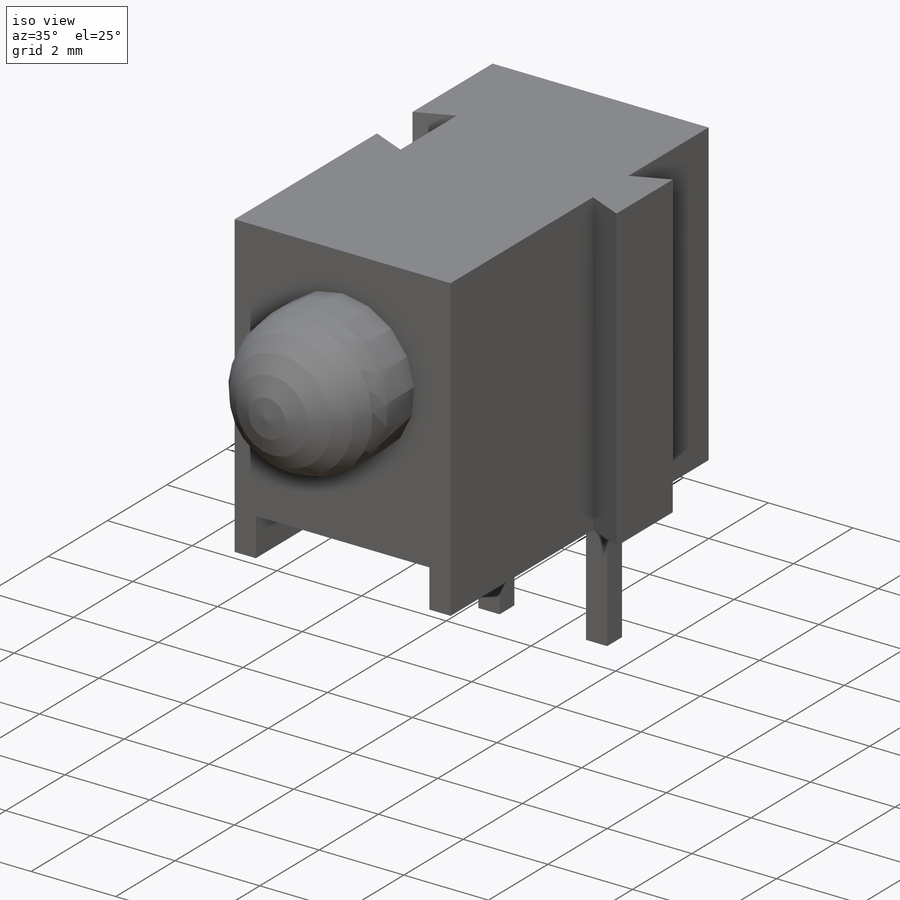
[diagram: iso view]
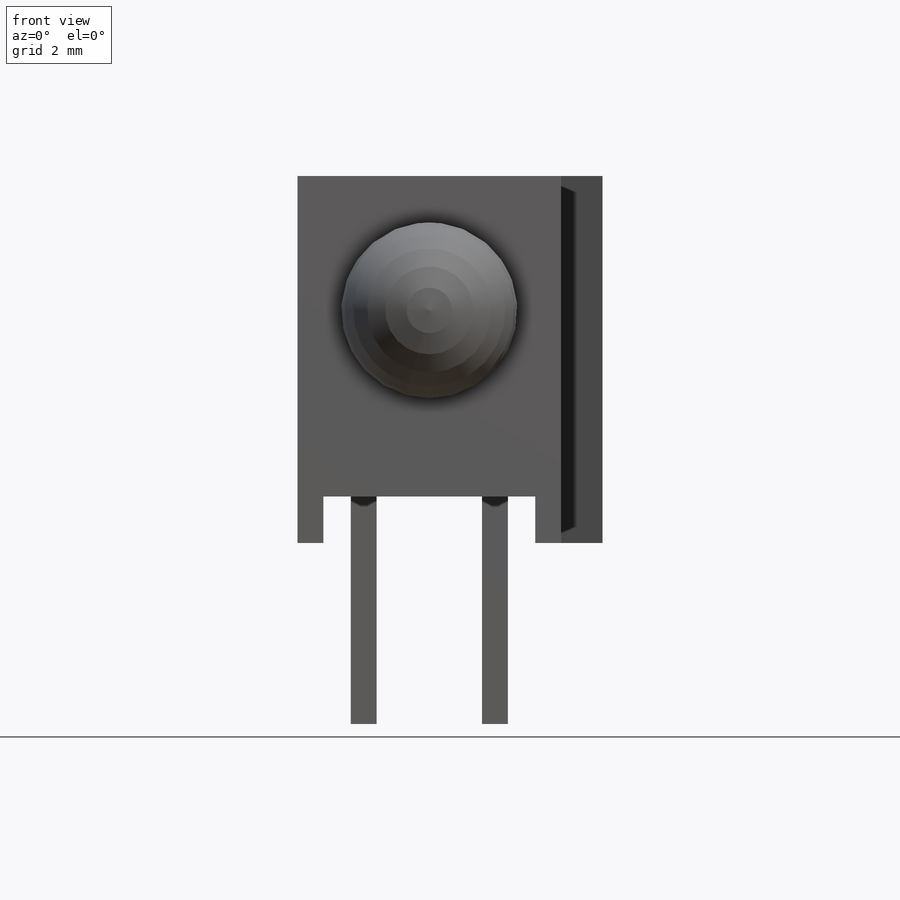
[diagram: front view]
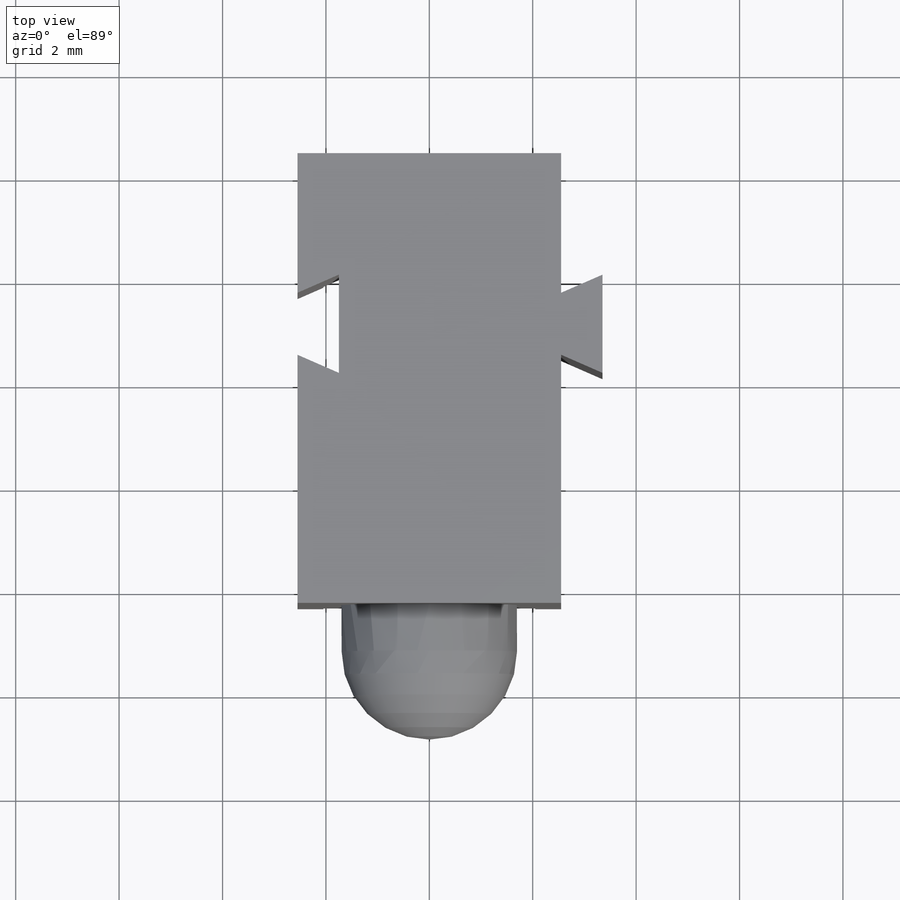
[diagram: top view]
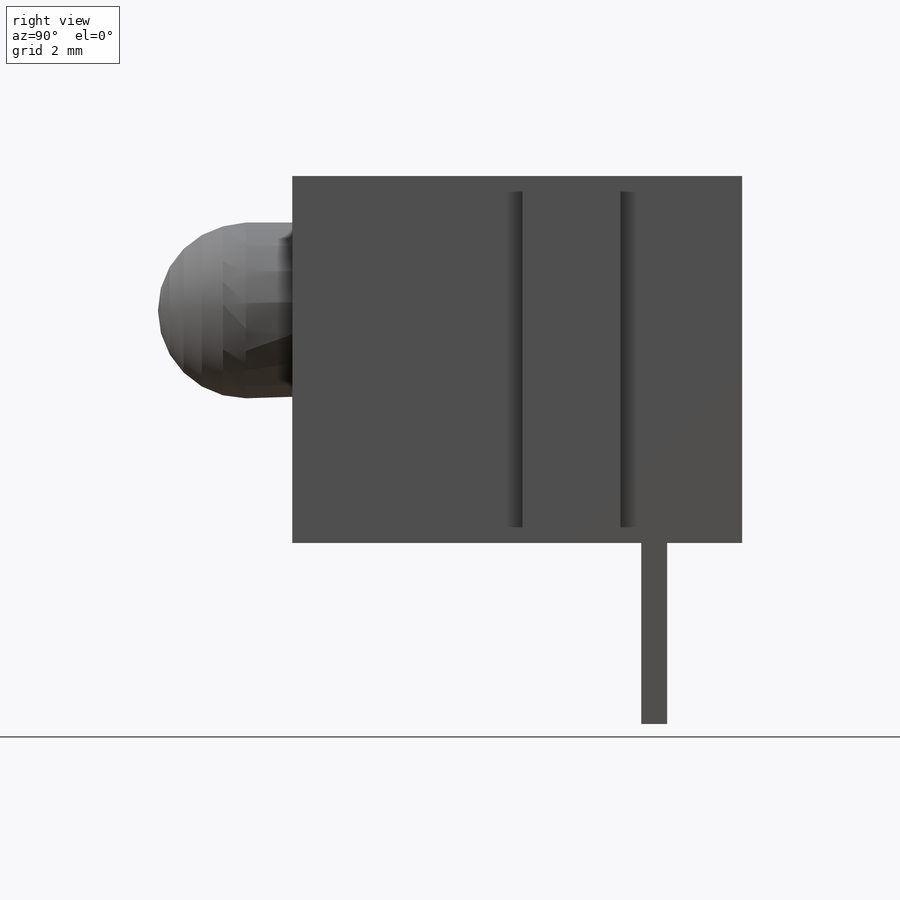
[diagram: right view]
SOLIDWORKS PART (.sldprt)
format: sldprt  version: not decoded by parser v0  size: 710,144 bytes
history: native  units: mm
features: sketch x9, extrude x4, cut_extrude x4, material x1, revolve x1 (+12 scaffold rows collapsed)
feature tree (31):
  scaffold x12  (default folders/planes/origin — collapsed)
  material  "Material <not specified>"
  sketch  "Sketch1"  dims[c1.D6=3.4mm c1.D8=2.9mm c1.D1=7.1mm c1.D2=8.7mm c1.D3=7.2mm c1.D4=0.5mm c1.D5=~1.909573mm c2.D5=~151.880658deg c3.D5=~1.909573mm c4.D5=34.0deg c4.D7=2.6mm c4.D9=2.54mm c4.D10=2.5mm c5.D9=7.62mm c5.D3=2.6mm c5.D4=0.9mm]
  extrude  "Extrude1"  Depth=5.1mm
  revolve  "Revolve1"  [1 undecoded]
  sketch  "Sketch1<3>"  dims[D1=360.0deg]
  cut_extrude  "Cut-Extrude1"  [1 undecoded]
  sketch  "Sketch1<5>"  dims[D1=4.1mm]
  sketch  "Sketch2"  dims[c1.D1=1.9mm c1.D2=0.8mm c1.D3=1.2mm c1.D4=1.2mm c1.D5=1.2mm c2.D4=2.35mm]
  cut_extrude  "Cut-Extrude2"  [1 undecoded]
  extrude  "Extrude2"  [1 undecoded]
  sketch  "Sketch2<3>"
  sketch  "Sketch3"  dims[c1.D1=~0.803219mm c2.D1=90.0deg c3.D1=0.5mm c3.D2=0.5mm c3.D3=7.0mm c3.D4=2.54mm]
  cut_extrude  "Cut-Extrude3"  [1 undecoded]
  extrude  "Extrude3"  [1 undecoded]
  sketch  "Sketch3<3>"
  extrude  "Extrude4"  [1 undecoded]
  sketch  "Sketch3<4>"  dims[D1=3.5mm]
  sketch  "Sketch4"
  cut_extrude  "Cut-Extrude4"  Depth=0.01mm
decode coverage: 8 of 18 modeling features carry decoded parameters
note: ~ marks probable driven/reference dimensions
note: 7 parameter values undecoded
summary: no parameter record found for 7 features
note: suppression state not decoded; provenance and decode notes live in map.json
